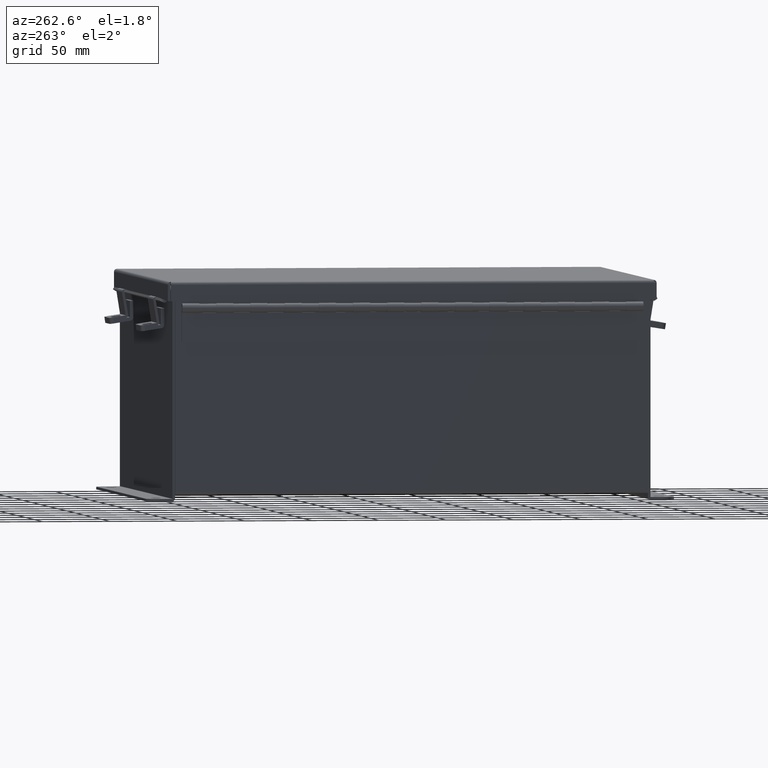
[diagram: clean part render]
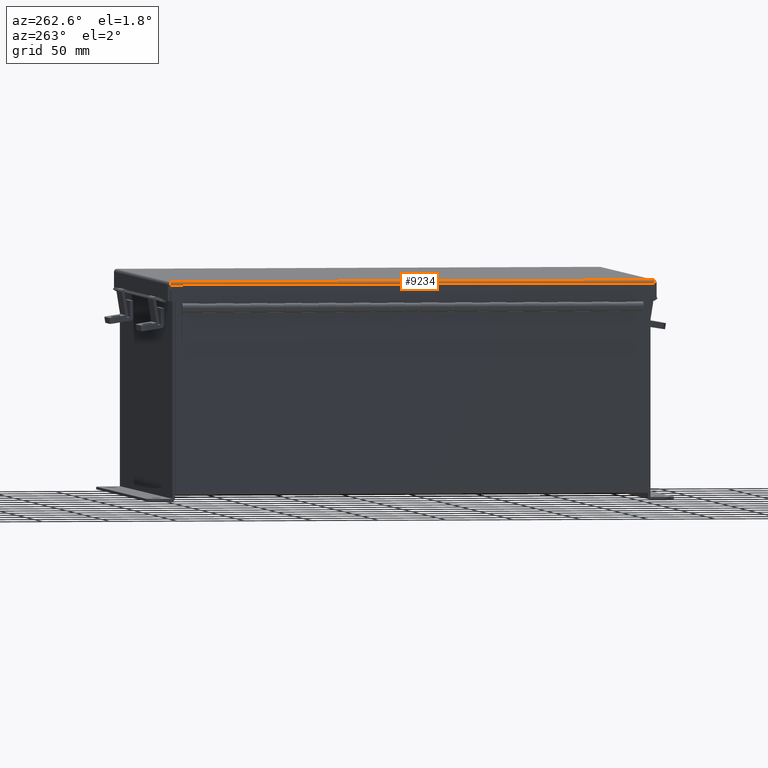
[diagram: same view with one face highlighted and labeled with its STEP entity id]
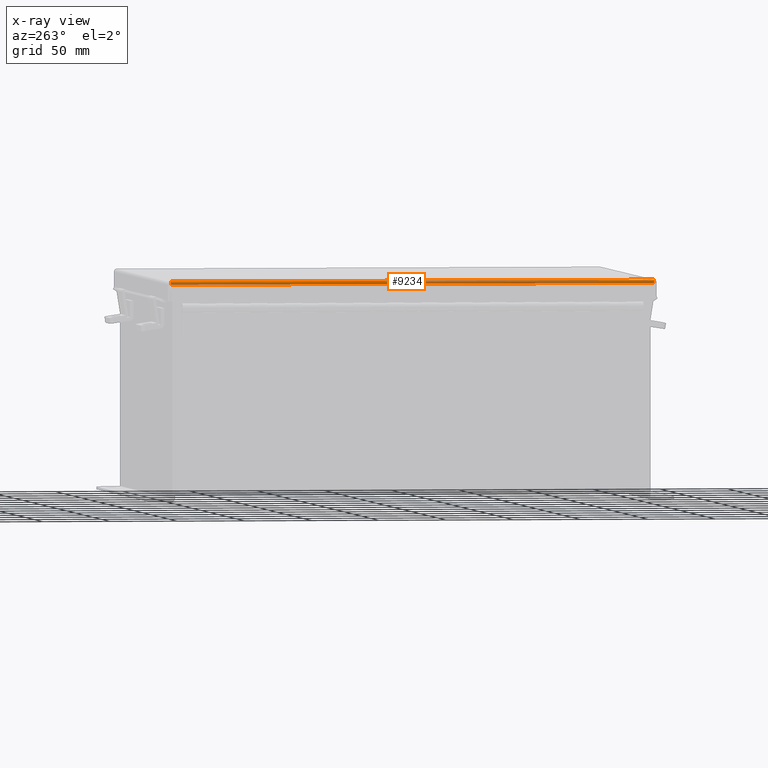
[diagram: x-ray of the same camera — body ghosted, the highlighted face saturated]
A machine part, auxiliary view. The second image highlights one B-rep face of the part: STEP entity #9234.
The next image is the same camera in x-ray: the body ghosted, the highlighted face saturated — about 0% of this face is hidden behind the body in this view.
In plain terms, the highlighted cylindrical surface (edge-blend (fillet) strip) has radius 2.2276 mm, axis along (-0, 1, -0).
Its self-contained STEP definition (entity closure, byte-faithful):
#230 = CARTESIAN_POINT ( 'NONE',  ( 6.138680782078321100, -7.072008543776417100, -0.04089574734180000100 ) ) ;
#357 = CARTESIAN_POINT ( 'NONE',  ( 6.156250000000000000, 7.074478932188133800, 0.01300000000000086700 ) ) ;
#652 = VECTOR ( 'NONE', #5983, 39.37007874015748100 ) ;
#1341 = VERTEX_POINT ( 'NONE', #1517 ) ;
#1343 = B_SPLINE_CURVE_WITH_KNOTS ( 'NONE', 3,
 ( #357, #1847, #13529, #4789, #15018, #6252, #16481, #7718, #17959, #9157 ),
 .UNSPECIFIED., .F., .F.,
 ( 4, 2, 2, 2, 4 ),
 ( 0.0000000000000000000, 0.2500000000000000600, 0.5000000000000000000, 0.7500000000000000000, 1.000000000000000000 ),
 .UNSPECIFIED. ) ;
#1517 = CARTESIAN_POINT ( 'NONE',  ( 6.156250000000000000, 7.074478932188133800, 0.01300000000000086700 ) ) ;
#1727 = CARTESIAN_POINT ( 'NONE',  ( 6.153967403743811500, -7.073490776823449600, -0.009955289458308837900 ) ) ;
#1847 = CARTESIAN_POINT ( 'NONE',  ( 6.156250000000002700, 7.073984854505790000, 0.001520096845007956000 ) ) ;
#1956 = DIRECTION ( 'NONE',  ( -3.424136966969388400E-031, -1.000000000000000000, -7.634859021594445400E-017 ) ) ;
#2520 = B_SPLINE_CURVE_WITH_KNOTS ( 'NONE', 3,
 ( #13342, #3127, #7527, #17771, #8962, #230, #10475, #1727, #11949, #3189 ),
 .UNSPECIFIED., .F., .F.,
 ( 4, 2, 2, 2, 4 ),
 ( 0.0000000000000000000, 0.2500000000000000000, 0.5000000000000000000, 0.7500000000000000000, 1.000000000000000000 ),
 .UNSPECIFIED. ) ;
#2987 = CARTESIAN_POINT ( 'NONE',  ( 6.068550000000000100, -7.068550000000001000, -0.07469999999999993300 ) ) ;
#3127 = CARTESIAN_POINT ( 'NONE',  ( 6.080029903154992300, -7.069044077682347500, -0.07469999999999996100 ) ) ;
#3189 = CARTESIAN_POINT ( 'NONE',  ( 6.156250000000000000, -7.074478932188138300, 0.01299999999999974100 ) ) ;
#3364 = CARTESIAN_POINT ( 'NONE',  ( 6.156250000000000000, -7.156250000000002700, 0.01299999999999978100 ) ) ;
#3510 = CARTESIAN_POINT ( 'NONE',  ( 6.156250000000000000, -7.074478932188138300, 0.01299999999999974100 ) ) ;
#3710 = DIRECTION ( 'NONE',  ( 1.000000000000000000, 0.0000000000000000000, -4.477801015840783100E-015 ) ) ;
#4160 = AXIS2_PLACEMENT_3D ( 'NONE', #16873, #8088, #3710 ) ;
#4278 = CYLINDRICAL_SURFACE ( 'NONE', #4160, 0.08770000000000026400 ) ;
#4524 = CARTESIAN_POINT ( 'NONE',  ( 6.068550000000000100, 7.074478932188133800, -0.07469999999999880900 ) ) ;
#4789 = CARTESIAN_POINT ( 'NONE',  ( 6.145181066258668800, 7.072502621458757400, -0.03116738457852702100 ) ) ;
#5874 = EDGE_CURVE ( 'NONE', #9474, #14307, #8398, .T. ) ;
#5983 = DIRECTION ( 'NONE',  ( -0.0000000000000000000, -1.000000000000000000, -8.208677865577646300E-017 ) ) ;
#6252 = CARTESIAN_POINT ( 'NONE',  ( 6.122445747341800800, 7.071020388411722200, -0.05713078207831937700 ) ) ;
#6314 = EDGE_CURVE ( 'NONE', #1341, #9474, #1343, .T. ) ;
#7527 = CARTESIAN_POINT ( 'NONE',  ( 6.091505289458310400, -7.069538155364689700, -0.07241740374381125400 ) ) ;
#7718 = CARTESIAN_POINT ( 'NONE',  ( 6.091505289458308600, 7.069538155364690500, -0.07241740374381011600 ) ) ;
#7865 = EDGE_CURVE ( 'NONE', #14307, #9710, #2520, .T. ) ;
#8088 = DIRECTION ( 'NONE',  ( 0.0000000000000000000, 1.000000000000000000, 8.208677865577646300E-017 ) ) ;
#8398 = LINE ( 'NONE', #4524, #652 ) ;
#8962 = CARTESIAN_POINT ( 'NONE',  ( 6.122445747341799900, -7.071020388411726600, -0.05713078207832037600 ) ) ;
#9157 = CARTESIAN_POINT ( 'NONE',  ( 6.068550000000000100, 7.068549999999999200, -0.07469999999999880900 ) ) ;
#9234 = ADVANCED_FACE ( 'NONE', ( #15933 ), #4278, .T. ) ;
#9474 = VERTEX_POINT ( 'NONE', #18796 ) ;
#9710 = VERTEX_POINT ( 'NONE', #3510 ) ;
#10475 = CARTESIAN_POINT ( 'NONE',  ( 6.145181066258667900, -7.072502621458759200, -0.03116738457852785300 ) ) ;
#11949 = CARTESIAN_POINT ( 'NONE',  ( 6.156250000000000000, -7.073984854505794400, 0.001520096845007338100 ) ) ;
#12468 = ORIENTED_EDGE ( 'NONE', *, *, #7865, .F. ) ;
#13342 = CARTESIAN_POINT ( 'NONE',  ( 6.068550000000000100, -7.068550000000001000, -0.07469999999999993300 ) ) ;
#13529 = CARTESIAN_POINT ( 'NONE',  ( 6.153967403743812300, 7.073490776823445200, -0.009955289458308156200 ) ) ;
#14307 = VERTEX_POINT ( 'NONE', #2987 ) ;
#14995 = EDGE_LOOP ( 'NONE', ( #16537, #16416, #16042, #12468 ) ) ;
#15018 = CARTESIAN_POINT ( 'NONE',  ( 6.138680782078321100, 7.072008543776411700, -0.04089574734179911300 ) ) ;
#15933 = FACE_OUTER_BOUND ( 'NONE', #14995, .T. ) ;
#16042 = ORIENTED_EDGE ( 'NONE', *, *, #18963, .T. ) ;
#16416 = ORIENTED_EDGE ( 'NONE', *, *, #6314, .F. ) ;
#16481 = CARTESIAN_POINT ( 'NONE',  ( 6.112717384578527200, 7.070526310729378300, -0.06363106625866732400 ) ) ;
#16537 = ORIENTED_EDGE ( 'NONE', *, *, #5874, .F. ) ;
#16804 = VECTOR ( 'NONE', #1956, 39.37007874015748100 ) ;
#16873 = CARTESIAN_POINT ( 'NONE',  ( 6.068550000000000100, 7.074478932188133800, 0.01300000000000129200 ) ) ;
#17264 = LINE ( 'NONE', #3364, #16804 ) ;
#17771 = CARTESIAN_POINT ( 'NONE',  ( 6.112717384578525400, -7.070526310729379200, -0.06363106625866836500 ) ) ;
#17959 = CARTESIAN_POINT ( 'NONE',  ( 6.080029903154993100, 7.069044077682344000, -0.07469999999999883700 ) ) ;
#18796 = CARTESIAN_POINT ( 'NONE',  ( 6.068550000000000100, 7.068549999999999200, -0.07469999999999880900 ) ) ;
#18963 = EDGE_CURVE ( 'NONE', #1341, #9710, #17264, .T. ) ;